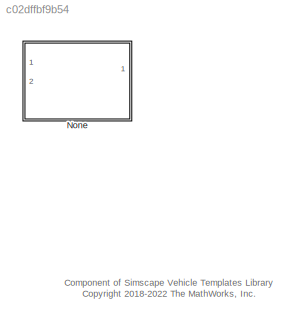
MODEL slx_c02dffbf9b54
KIND library
CONFIG AbsTol = auto
CONFIG EnableMultiTasking = off
CONFIG FixedStep = auto
CONFIG MaxStep = auto
CONFIG MinStep = auto
CONFIG RelTol = 1e-3
CONFIG SampleTimeConstraint = Unconstrained
CONFIG SolverName = VariableStepAuto
CONFIG StartTime = 0.0
CONFIG StopTime = 10.0
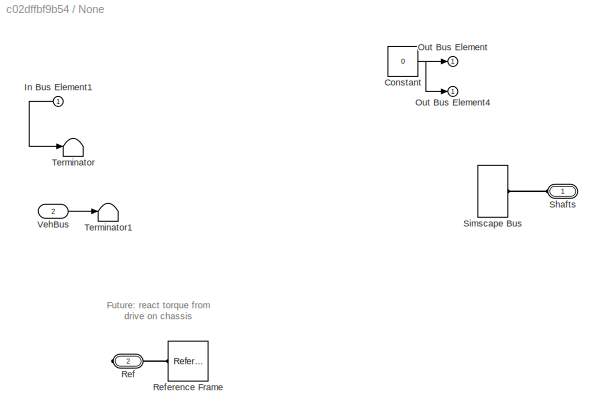
BLOCK [SubSystem] None
  Ports = [2, 1, 0, 0, 0, 1, 1]
  RequestExecContextInheritance = off
  VariantControl = IdealOneMotor
BLOCK [Constant] None/Constant
  Value = 0
BLOCK [Inport] None/In Bus Element1
BLOCK [Outport] None/Out Bus Element
  VectorParamsAs1DForOutWhenUnconnected = off
BLOCK [Outport] None/Out Bus Element4
  VectorParamsAs1DForOutWhenUnconnected = off
BLOCK [PMIOPort] None/Ref
  NameLocation = top
  Port = 2
  Side = Right
BLOCK [Reference] None/Reference Frame  REF=sm_lib/Frames and
Transforms/Reference
Frame
  NameLocation = top
  Ports = [0, 0, 0, 0, 0, 0, 1]
  SourceBlock = sm_lib/Frames and\nTransforms/Reference\nFrame
  SourceProductBaseCode = MS
  SourceType = Reference\nFrame
BLOCK [PMIOPort] None/Shafts
  NameLocation = top
  Side = Left
BLOCK [SimscapeBus] None/Simscape Bus
  Ports = [0, 0, 0, 0, 0, 0, 1]
BLOCK [Terminator] None/Terminator
BLOCK [Terminator] None/Terminator1
BLOCK [Inport] None/VehBus
  Port = 2
ANNOTATION (root): Component of Simscape Vehicle Templates Library <copyright redacted>
ANNOTATION None: Future: react torque from drive on chassis
NET None/Constant:1 -> None/Out Bus Element4:1, None/Out Bus Element:1
LINE None/In Bus Element1:1 -> None/Terminator:1
LINE None/VehBus:1 -> None/Terminator1:1
PLINE None/Ref:RConn1 -- None/Reference Frame:RConn1
PLINE None/Shafts:RConn1 -- None/Simscape Bus:RConn1
note: NET lines group one-source signal fan-out (src -> all destinations, sorted); 1:1 wires keep LINE
